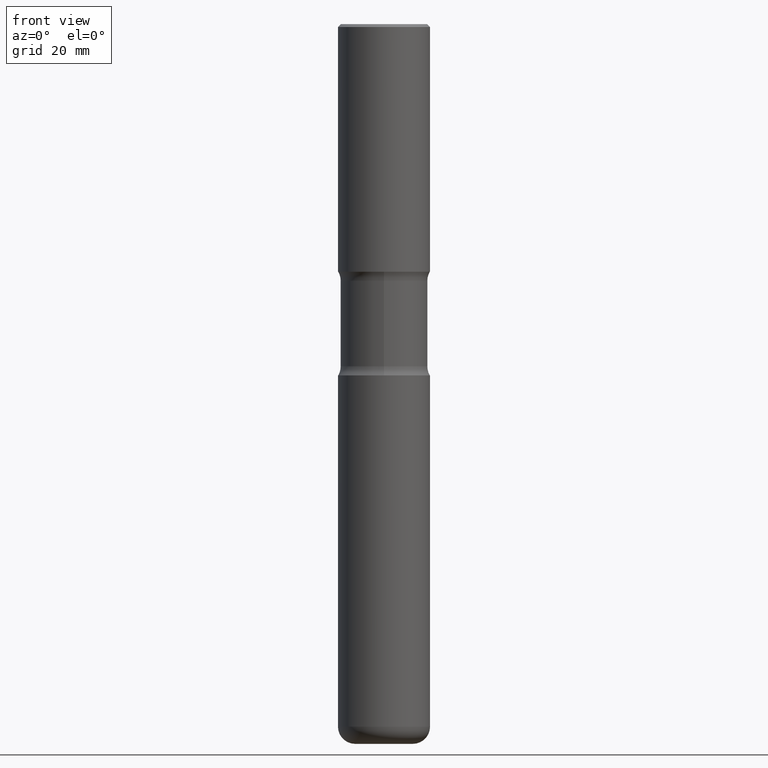
[diagram: clean part render]
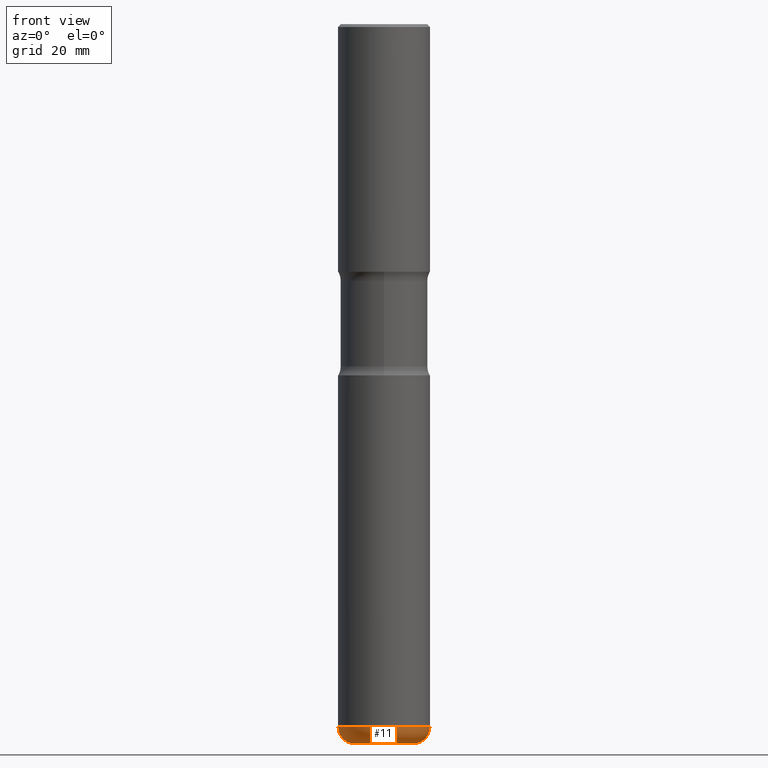
[diagram: same view with one face highlighted and labeled with its STEP entity id]
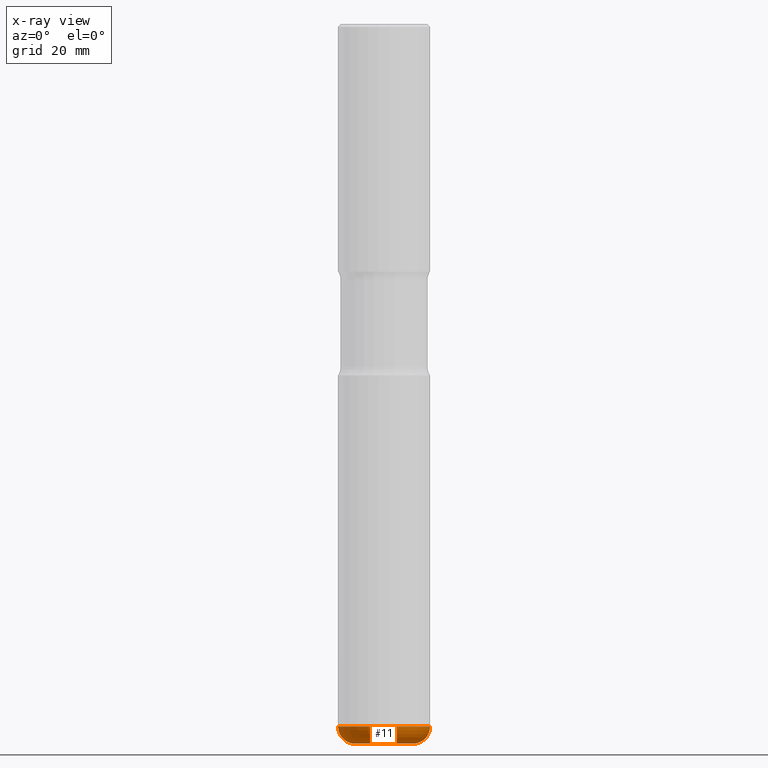
[diagram: x-ray of the same camera — body ghosted, the highlighted face saturated]
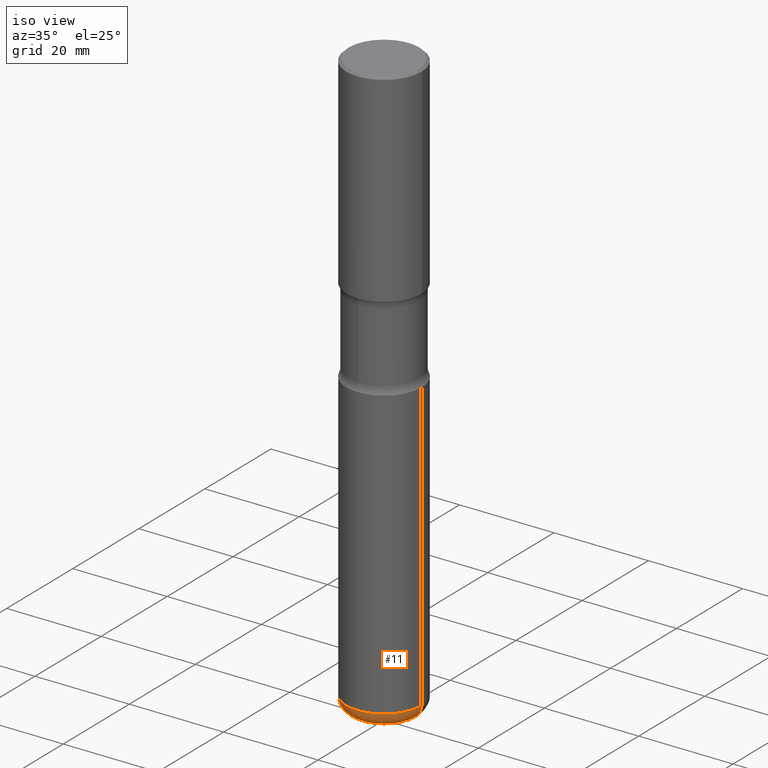
[diagram: same view with one face highlighted and labeled with its STEP entity id]
A machine part, front view. The second image highlights one B-rep face of the part: STEP entity #11.
The next image is the same camera in x-ray: the body ghosted, the highlighted face saturated — about 0% of this face is hidden behind the body in this view.
A second angle (iso view) of the same face is appended — the face is thin or edge-on in the first view.
In plain terms, the highlighted toroidal blend (fillet) surface has major radius 5.0025 mm and minor (blend) radius 2.9972 mm.
Its self-contained STEP definition (entity closure, byte-faithful):
#11 = ADVANCED_FACE ( 'NONE', ( #46 ), #222, .T. ) ;
#16 = CIRCLE ( 'NONE', #197, 0.1180000000000000770 ) ;
#19 = DIRECTION ( 'NONE',  ( -2.445468806185136597E-29, 3.491481338843145583E-15, 1.000000000000000000 ) ) ;
#44 = AXIS2_PLACEMENT_3D ( 'NONE', #455, #114, #68 ) ;
#46 = FACE_OUTER_BOUND ( 'NONE', #411, .T. ) ;
#52 = ORIENTED_EDGE ( 'NONE', *, *, #493, .F. ) ;
#68 = DIRECTION ( 'NONE',  ( -1.000000000000000000, 7.105427357601009747E-15, 0.000000000000000000 ) ) ;
#89 = AXIS2_PLACEMENT_3D ( 'NONE', #252, #19, #331 ) ;
#90 = CARTESIAN_POINT ( 'NONE',  ( 1.174632031674906636E-28, -1.677063231486527962E-14, -4.803299999999999237 ) ) ;
#94 = EDGE_CURVE ( 'NONE', #140, #392, #145, .T. ) ;
#114 = DIRECTION ( 'NONE',  ( 7.105427357601001859E-15, 1.000000000000000000, -3.491481338843145583E-15 ) ) ;
#130 = CARTESIAN_POINT ( 'NONE',  ( 1.174632031674906636E-28, -1.677063231486527962E-14, -4.803299999999999237 ) ) ;
#140 = VERTEX_POINT ( 'NONE', #325 ) ;
#145 = CIRCLE ( 'NONE', #89, 0.1969500000000003470 ) ;
#161 = DIRECTION ( 'NONE',  ( 1.000000000000000000, -6.982962677686278543E-15, 0.000000000000000000 ) ) ;
#183 = DIRECTION ( 'NONE',  ( -2.445468806185136597E-29, 3.491481338843145583E-15, 1.000000000000000000 ) ) ;
#197 = AXIS2_PLACEMENT_3D ( 'NONE', #372, #546, #161 ) ;
#222 = TOROIDAL_SURFACE ( 'NONE', #494, 0.1969500000000003470, 0.1180000000000001187 ) ;
#252 = CARTESIAN_POINT ( 'NONE',  ( 1.203488563587891146E-28, -1.718262711284877024E-14, -4.921299999999999564 ) ) ;
#262 = DIRECTION ( 'NONE',  ( 1.000000000000000000, -6.982962677686266711E-15, 4.883557194083112901E-29 ) ) ;
#264 = ORIENTED_EDGE ( 'NONE', *, *, #268, .F. ) ;
#266 = VERTEX_POINT ( 'NONE', #343 ) ;
#268 = EDGE_CURVE ( 'NONE', #266, #382, #453, .T. ) ;
#285 = CARTESIAN_POINT ( 'NONE',  ( 0.1969500000000003470, -1.855792161221908360E-14, -4.921299999999999564 ) ) ;
#325 = CARTESIAN_POINT ( 'NONE',  ( -0.1969500000000003470, -1.515799558167904606E-14, -4.921299999999999564 ) ) ;
#331 = DIRECTION ( 'NONE',  ( 1.000000000000000000, -6.982962677686269077E-15, 0.000000000000000000 ) ) ;
#343 = CARTESIAN_POINT ( 'NONE',  ( -0.3149500000000003963, -1.453277796858884048E-14, -4.803299999999999237 ) ) ;
#348 = DIRECTION ( 'NONE',  ( 1.000000000000000000, -6.982962677686268288E-15, 0.000000000000000000 ) ) ;
#349 = ORIENTED_EDGE ( 'NONE', *, *, #94, .T. ) ;
#372 = CARTESIAN_POINT ( 'NONE',  ( 0.1969500000000003470, -1.814592681423558983E-14, -4.803299999999999237 ) ) ;
#373 = EDGE_CURVE ( 'NONE', #392, #382, #16, .T. ) ;
#382 = VERTEX_POINT ( 'NONE', #442 ) ;
#392 = VERTEX_POINT ( 'NONE', #285 ) ;
#411 = EDGE_LOOP ( 'NONE', ( #52, #349, #473, #264 ) ) ;
#442 = CARTESIAN_POINT ( 'NONE',  ( 0.3149500000000003963, -1.896991641020257106E-14, -4.803299999999999237 ) ) ;
#453 = CIRCLE ( 'NONE', #544, 0.3149500000000003408 ) ;
#455 = CARTESIAN_POINT ( 'NONE',  ( -0.1969500000000003470, -1.537121839678576102E-14, -4.803299999999999237 ) ) ;
#470 = DIRECTION ( 'NONE',  ( -2.445468806185136597E-29, 3.491481338843145583E-15, 1.000000000000000000 ) ) ;
#473 = ORIENTED_EDGE ( 'NONE', *, *, #373, .T. ) ;
#477 = CIRCLE ( 'NONE', #44, 0.1180000000000000770 ) ;
#493 = EDGE_CURVE ( 'NONE', #140, #266, #477, .T. ) ;
#494 = AXIS2_PLACEMENT_3D ( 'NONE', #90, #470, #262 ) ;
#544 = AXIS2_PLACEMENT_3D ( 'NONE', #130, #183, #348 ) ;
#546 = DIRECTION ( 'NONE',  ( -6.982962677686266711E-15, -1.000000000000000000, 3.491481338843145583E-15 ) ) ;